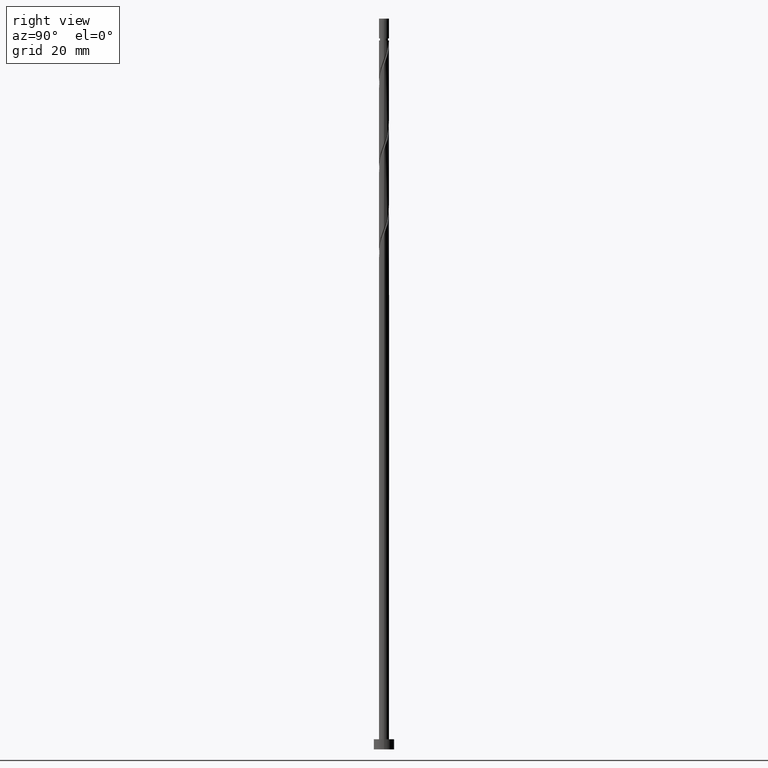
[diagram: clean part render]
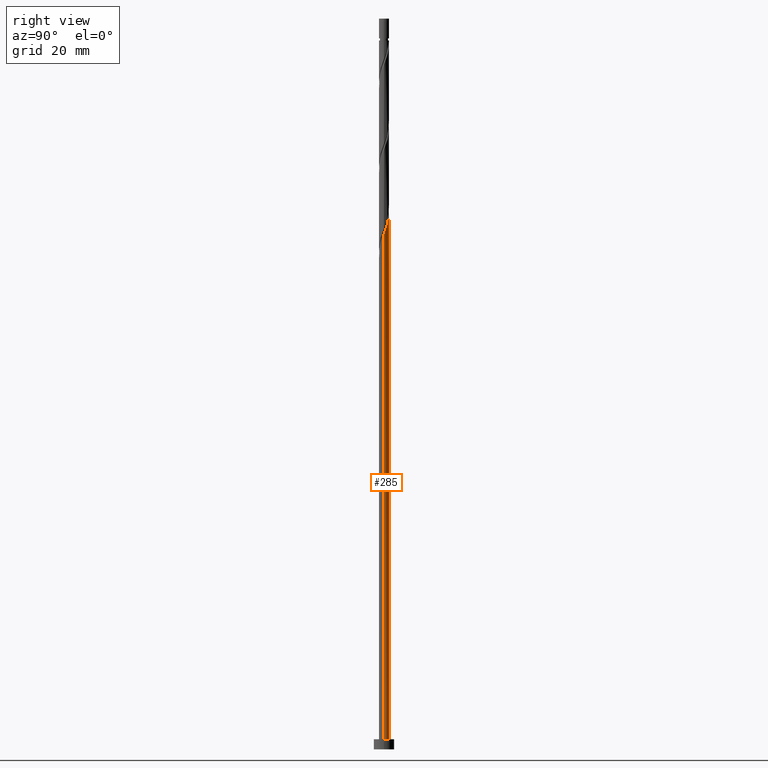
[diagram: same view with one face highlighted and labeled with its STEP entity id]
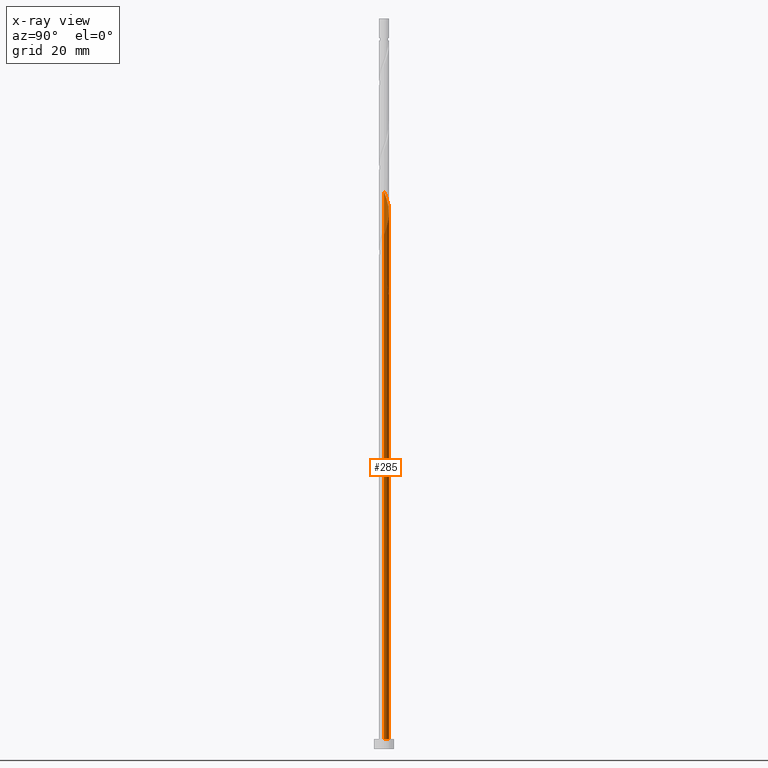
[diagram: x-ray of the same camera — body ghosted, the highlighted face saturated]
A machine part, right view. The second image highlights one B-rep face of the part: STEP entity #285.
The next image is the same camera in x-ray: the body ghosted, the highlighted face saturated — about 0% of this face is hidden behind the body in this view.
In plain terms, the highlighted cylindrical surface (edge-blend (fillet) strip) has radius 1 mm, axis along (-0, -0, -1).
Its self-contained STEP definition (entity closure, byte-faithful):
#3 = ORIENTED_EDGE ( 'NONE', *, *, #1162, .T. ) ;
#23 = CARTESIAN_POINT ( 'NONE',  ( -1.000000000000001332, 9.036450148258103858E-13, 94.09271761679831059 ) ) ;
#24 = ORIENTED_EDGE ( 'NONE', *, *, #1437, .F. ) ;
#29 = CARTESIAN_POINT ( 'NONE',  ( -0.8921910604809071277, 0.4848570054394603646, 108.3766775432934253 ) ) ;
#44 = EDGE_CURVE ( 'NONE', #274, #494, #161, .T. ) ;
#45 = CARTESIAN_POINT ( 'NONE',  ( -1.000000000000001332, 5.844870661472089523E-16, 93.03100784015649083 ) ) ;
#66 = AXIS2_PLACEMENT_3D ( 'NONE', #1353, #1265, #380 ) ;
#100 = CYLINDRICAL_SURFACE ( 'NONE', #1412, 1.000000000000000000 ) ;
#126 = ORIENTED_EDGE ( 'NONE', *, *, #44, .F. ) ;
#161 =( BOUNDED_CURVE ( )  B_SPLINE_CURVE ( 2, ( #1325, #400, #974, #1094, #1204, #280, #653, #856, #45 ),
 .UNSPECIFIED., .F., .T. ) 
 B_SPLINE_CURVE_WITH_KNOTS ( ( 3, 2, 2, 2, 3 ),
 ( 0.000000000000000000, 0.01388888888888883955, 0.02777777777777779011, 0.04166666666666662966, 0.05452480538552887529 ),
 .UNSPECIFIED. ) 
 CURVE ( )  GEOMETRIC_REPRESENTATION_ITEM ( )  RATIONAL_B_SPLINE_CURVE ( ( 0.9090909090909250478, 0.8952797754656593998, 0.9090909090909250478, 0.8952797754656593998, 0.9090909090909250478, 0.8952797754656593998, 0.9090909090909250478, 0.8963047551055995932, 0.9071930855141370209 ) ) 
 REPRESENTATION_ITEM ( '' )  );
#190 = VECTOR ( 'NONE', #857, 1000.000000000000000 ) ;
#262 = AXIS2_PLACEMENT_3D ( 'NONE', #499, #371, #1180 ) ;
#267 = CARTESIAN_POINT ( 'NONE',  ( -0.7823727769265554910, 0.6228104349834172604, 107.9137145803304918 ) ) ;
#274 = VERTEX_POINT ( 'NONE', #703 ) ;
#280 = CARTESIAN_POINT ( 'NONE',  ( -0.8921910604809071277, 0.4848570054394603646, 91.71001087662673967 ) ) ;
#285 = ADVANCED_FACE ( 'NONE', ( #1157 ), #100, .T. ) ;
#299 = CARTESIAN_POINT ( 'NONE',  ( -0.3225635862758272077, 0.9628312089533882512, 90.78408495070084427 ) ) ;
#312 = CARTESIAN_POINT ( 'NONE',  ( -0.9305560469009532820, 0.3661494825560639987, 93.09889976551566804 ) ) ;
#313 =( BOUNDED_CURVE ( )  B_SPLINE_CURVE ( 2, ( #895, #1344, #316, #551, #1257, #1009, #1462, #436, #324, #559, #1017, #444, #908, #1359, #334, #834, #267, #29, #728, #1084, #496 ),
 .UNSPECIFIED., .F., .T. ) 
 B_SPLINE_CURVE_WITH_KNOTS ( ( 3, 2, 2, 2, 2, 2, 2, 2, 2, 2, 3 ),
 ( 0.1795248053855292569, 0.1805555555555555802, 0.1944444444444444198, 0.2083333333333333703, 0.2222222222222222099, 0.2361111111111111605, 0.2500000000000000000, 0.2638888888888888395, 0.2777777777777777901, 0.2916666666666666297, 0.3045248053855289516 ),
 .UNSPECIFIED. ) 
 CURVE ( )  GEOMETRIC_REPRESENTATION_ITEM ( )  RATIONAL_B_SPLINE_CURVE ( ( 0.9071930855141376870, 0.9080659294509851875, 0.9090909090909250478, 0.8952797754656593998, 0.9090909090909250478, 0.8952797754656593998, 0.9090909090909250478, 0.8952797754656593998, 0.9090909090909250478, 0.8952797754656593998, 0.9090909090909250478, 0.8952797754656593998, 0.9090909090909250478, 0.8952797754656593998, 0.9090909090909250478, 0.8952797754656593998, 0.9090909090909250478, 0.8952797754656593998, 0.9090909090909250478, 0.8963047551055995932, 0.9071930855141371319 ) ) 
 REPRESENTATION_ITEM ( '' )  );
#316 = CARTESIAN_POINT ( 'NONE',  ( 0.9996671490029760410, 0.02579905432888031369, 101.4322330988489966 ) ) ;
#324 = CARTESIAN_POINT ( 'NONE',  ( 0.4774909380590632302, 0.8786366735297811426, 104.2100108766267823 ) ) ;
#329 = EDGE_CURVE ( 'NONE', #1167, #607, #313, .T. ) ;
#334 = CARTESIAN_POINT ( 'NONE',  ( -0.5221762109439131994, 0.8528376192009009538, 106.9877886544045538 ) ) ;
#364 = ORIENTED_EDGE ( 'NONE', *, *, #1019, .T. ) ;
#371 = DIRECTION ( 'NONE',  ( 0.000000000000000000, 0.000000000000000000, 1.000000000000000000 ) ) ;
#380 = DIRECTION ( 'NONE',  ( -1.000000000000000000, 0.000000000000000000, 0.000000000000000000 ) ) ;
#400 = CARTESIAN_POINT ( 'NONE',  ( -0.3717979285156228775, 0.9449113738744275848, 89.85815902477492045 ) ) ;
#436 = CARTESIAN_POINT ( 'NONE',  ( 0.6324182898422987531, 0.7944421381061740339, 103.7470479136638346 ) ) ;
#444 = CARTESIAN_POINT ( 'NONE',  ( -0.02619704632703111213, 1.015088626125574045, 105.5988997655156538 ) ) ;
#463 = DIRECTION ( 'NONE',  ( -0.000000000000000000, -0.000000000000000000, -1.000000000000000000 ) ) ;
#469 = EDGE_CURVE ( 'NONE', #1391, #1156, #636, .T. ) ;
#484 = CARTESIAN_POINT ( 'NONE',  ( 0.1989974874213273348, 0.9800000000000006484, 89.39519606181194433 ) ) ;
#494 = VERTEX_POINT ( 'NONE', #658 ) ;
#496 = CARTESIAN_POINT ( 'NONE',  ( -1.000000000000001332, 5.844870661472088537E-16, 109.6976745068231764 ) ) ;
#499 = CARTESIAN_POINT ( 'NONE',  ( 0.000000000000000000, 0.000000000000000000, 2.000000000000000000 ) ) ;
#500 = ORIENTED_EDGE ( 'NONE', *, *, #1220, .F. ) ;
#504 = CARTESIAN_POINT ( 'NONE',  ( -0.9999999999999893419, 0.01290167433247704602, 94.05870024286714681 ) ) ;
#526 = CARTESIAN_POINT ( 'NONE',  ( -0.8659940141538757796, 0.5302316206861141801, 92.63593680255266349 ) ) ;
#533 = CARTESIAN_POINT ( 'NONE',  ( -0.6324182898422984200, 0.7944421381061741450, 91.71001087662678231 ) ) ;
#542 = DIRECTION ( 'NONE',  ( -0.000000000000000000, -0.000000000000000000, -1.000000000000000000 ) ) ;
#551 = CARTESIAN_POINT ( 'NONE',  ( 0.9951180796480310065, 0.2020673444260141227, 101.8951960618119728 ) ) ;
#559 = CARTESIAN_POINT ( 'NONE',  ( 0.3225635862758278738, 0.9628312089533880291, 104.6729738395897158 ) ) ;
#594 = VERTEX_POINT ( 'NONE', #1007 ) ;
#607 = VERTEX_POINT ( 'NONE', #1203 ) ;
#636 =( BOUNDED_CURVE ( )  B_SPLINE_CURVE ( 2, ( #23, #504, #1397, #1062, #312, #526, #1445, #533, #992, #299, #1342, #987, #872 ),
 .UNSPECIFIED., .F., .T. ) 
 B_SPLINE_CURVE_WITH_KNOTS ( ( 3, 2, 2, 2, 2, 2, 3 ),
 ( 0.9295248053855652559, 0.9305555555555555802, 0.9444444444444444198, 0.9583333333333333703, 0.9722222222222222099, 0.9861111111111111605, 1.000000000000000000 ),
 .UNSPECIFIED. ) 
 CURVE ( )  GEOMETRIC_REPRESENTATION_ITEM ( )  RATIONAL_B_SPLINE_CURVE ( ( 0.9071930855141877581, 0.9080659294510100565, 0.9090909090909141677, 0.8952797754656485196, 0.9090909090909141677, 0.8952797754656485196, 0.9090909090909141677, 0.8952797754656485196, 0.9090909090909141677, 0.8952797754656485196, 0.9090909090909141677, 0.8952797754656485196, 0.9090909090909141677 ) ) 
 REPRESENTATION_ITEM ( '' )  );
#646 = VECTOR ( 'NONE', #463, 1000.000000000000000 ) ;
#653 = CARTESIAN_POINT ( 'NONE',  ( -0.9482036394194141016, 0.3176631206038570410, 92.17297383958971579 ) ) ;
#658 = CARTESIAN_POINT ( 'NONE',  ( -1.000000000000001332, 5.844870661472089523E-16, 93.03100784015649083 ) ) ;
#661 = CARTESIAN_POINT ( 'NONE',  ( -1.000000000000000000, 0.000000000000000000, 2.000000000000000000 ) ) ;
#677 = LINE ( 'NONE', #1124, #646 ) ;
#703 = CARTESIAN_POINT ( 'NONE',  ( -0.1989974874213268907, 0.9800000000000010925, 89.39519606181194433 ) ) ;
#722 = CIRCLE ( 'NONE', #66, 1.000000000000000000 ) ;
#728 = CARTESIAN_POINT ( 'NONE',  ( -0.9482036394194141016, 0.3176631206038570410, 108.8396405062564156 ) ) ;
#834 = CARTESIAN_POINT ( 'NONE',  ( -0.6725544933722037433, 0.7607638645273743228, 107.4507516173675157 ) ) ;
#838 = VERTEX_POINT ( 'NONE', #661 ) ;
#843 = ORIENTED_EDGE ( 'NONE', *, *, #1130, .T. ) ;
#856 = CARTESIAN_POINT ( 'NONE',  ( -1.000000000000000888, 0.1630543718204565118, 92.60108832779089028 ) ) ;
#857 = DIRECTION ( 'NONE',  ( -0.000000000000000000, -0.000000000000000000, -1.000000000000000000 ) ) ;
#866 = CARTESIAN_POINT ( 'NONE',  ( -1.000000000000000000, 0.000000000000000000, 143.6999999999999886 ) ) ;
#872 = CARTESIAN_POINT ( 'NONE',  ( 0.1989974874213273348, 0.9800000000000006484, 89.39519606181194433 ) ) ;
#895 = CARTESIAN_POINT ( 'NONE',  ( 1.000000000000001332, -6.050281451491875313E-16, 101.3643411734898621 ) ) ;
#908 = CARTESIAN_POINT ( 'NONE',  ( -0.1989974874213268352, 0.9800000000000010925, 106.0618627284786157 ) ) ;
#910 = CIRCLE ( 'NONE', #262, 1.000000000000000000 ) ;
#953 = EDGE_LOOP ( 'NONE', ( #1057, #364, #3, #500, #126, #843, #1377, #24 ) ) ;
#974 = CARTESIAN_POINT ( 'NONE',  ( -0.5221762109439131994, 0.8528376192009009538, 90.32112198773789657 ) ) ;
#987 = CARTESIAN_POINT ( 'NONE',  ( 0.02619704632703116765, 1.015088626125574045, 89.85815902477490624 ) ) ;
#992 = CARTESIAN_POINT ( 'NONE',  ( -0.4774909380590626196, 0.8786366735297810315, 91.24704791366376355 ) ) ;
#1002 = DIRECTION ( 'NONE',  ( -1.000000000000000000, 0.000000000000000000, 0.000000000000000000 ) ) ;
#1007 = CARTESIAN_POINT ( 'NONE',  ( 1.000000000000000000, 1.224646799147353207E-16, 2.000000000000000000 ) ) ;
#1009 = CARTESIAN_POINT ( 'NONE',  ( 0.8659940141538763347, 0.5302316206861131809, 102.8211219877378824 ) ) ;
#1017 = CARTESIAN_POINT ( 'NONE',  ( 0.1481832699743988457, 0.9889599175394809816, 105.1359368025527061 ) ) ;
#1019 = EDGE_CURVE ( 'NONE', #1167, #594, #677, .T. ) ;
#1057 = ORIENTED_EDGE ( 'NONE', *, *, #329, .F. ) ;
#1058 = CARTESIAN_POINT ( 'NONE',  ( 1.000000000000001332, -6.050281451491875313E-16, 101.3643411734898621 ) ) ;
#1062 = CARTESIAN_POINT ( 'NONE',  ( -0.9951180796480311175, 0.2020673444260143448, 93.56186272847858731 ) ) ;
#1070 = CARTESIAN_POINT ( 'NONE',  ( -1.000000000000000000, 0.000000000000000000, 143.6999999999999886 ) ) ;
#1084 = CARTESIAN_POINT ( 'NONE',  ( -1.000000000000001332, 0.1630543718204555681, 109.2677549944575617 ) ) ;
#1094 = CARTESIAN_POINT ( 'NONE',  ( -0.6725544933722037433, 0.7607638645273743228, 90.78408495070085849 ) ) ;
#1101 = LINE ( 'NONE', #866, #190 ) ;
#1124 = CARTESIAN_POINT ( 'NONE',  ( 1.000000000000000000, 1.224646799147353207E-16, 143.6999999999999886 ) ) ;
#1130 = EDGE_CURVE ( 'NONE', #274, #1156, #722, .T. ) ;
#1156 = VERTEX_POINT ( 'NONE', #484 ) ;
#1157 = FACE_OUTER_BOUND ( 'NONE', #953, .T. ) ;
#1162 = EDGE_CURVE ( 'NONE', #594, #838, #910, .T. ) ;
#1167 = VERTEX_POINT ( 'NONE', #1058 ) ;
#1180 = DIRECTION ( 'NONE',  ( 1.000000000000000000, 0.000000000000000000, 0.000000000000000000 ) ) ;
#1198 = CARTESIAN_POINT ( 'NONE',  ( -1.000000000000001332, 9.036450148258103858E-13, 94.09271761679831059 ) ) ;
#1203 = CARTESIAN_POINT ( 'NONE',  ( -1.000000000000001332, 5.844870661472089523E-16, 109.6976745068231764 ) ) ;
#1204 = CARTESIAN_POINT ( 'NONE',  ( -0.7823727769265554910, 0.6228104349834172604, 91.24704791366380618 ) ) ;
#1220 = EDGE_CURVE ( 'NONE', #494, #838, #1407, .T. ) ;
#1257 = CARTESIAN_POINT ( 'NONE',  ( 0.9305560469009536151, 0.3661494825560637212, 102.3581590247749205 ) ) ;
#1265 = DIRECTION ( 'NONE',  ( 0.000000000000000000, 0.000000000000000000, -1.000000000000000000 ) ) ;
#1297 = DIRECTION ( 'NONE',  ( -0.000000000000000000, -0.000000000000000000, -1.000000000000000000 ) ) ;
#1325 = CARTESIAN_POINT ( 'NONE',  ( -0.1989974874213268907, 0.9800000000000010925, 89.39519606181194433 ) ) ;
#1336 = VECTOR ( 'NONE', #1297, 1000.000000000000000 ) ;
#1342 = CARTESIAN_POINT ( 'NONE',  ( -0.1481832699743979853, 0.9889599175394812036, 90.32112198773782552 ) ) ;
#1344 = CARTESIAN_POINT ( 'NONE',  ( 1.000000000000001110, 0.01290167433202603180, 101.3983585474222053 ) ) ;
#1352 = CARTESIAN_POINT ( 'NONE',  ( 0.000000000000000000, 0.000000000000000000, 143.6999999999999886 ) ) ;
#1353 = CARTESIAN_POINT ( 'NONE',  ( 0.000000000000000000, 0.000000000000000000, 89.39519606181193012 ) ) ;
#1359 = CARTESIAN_POINT ( 'NONE',  ( -0.3717979285156228775, 0.9449113738744275848, 106.5248256914415919 ) ) ;
#1377 = ORIENTED_EDGE ( 'NONE', *, *, #469, .F. ) ;
#1391 = VERTEX_POINT ( 'NONE', #1198 ) ;
#1397 = CARTESIAN_POINT ( 'NONE',  ( -0.9996671490029758189, 0.02579905432888032410, 94.02482569144157765 ) ) ;
#1407 = LINE ( 'NONE', #1070, #1336 ) ;
#1412 = AXIS2_PLACEMENT_3D ( 'NONE', #1352, #542, #1002 ) ;
#1437 = EDGE_CURVE ( 'NONE', #607, #1391, #1101, .T. ) ;
#1445 = CARTESIAN_POINT ( 'NONE',  ( -0.7492061519980870443, 0.6623368793961438294, 92.17297383958970158 ) ) ;
#1462 = CARTESIAN_POINT ( 'NONE',  ( 0.7492061519980871553, 0.6623368793961442735, 103.2840849507008443 ) ) ;